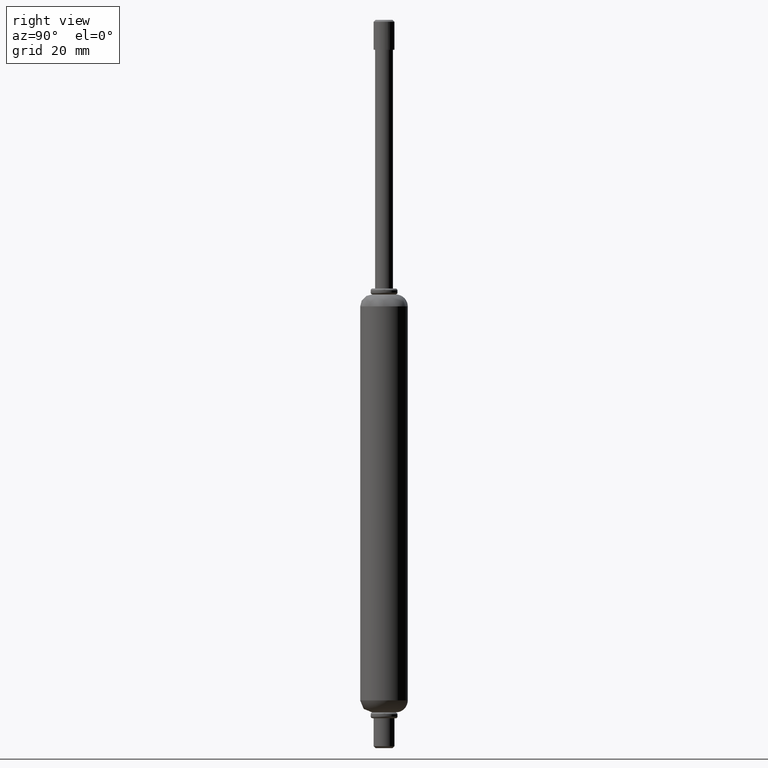
[diagram: clean part render]
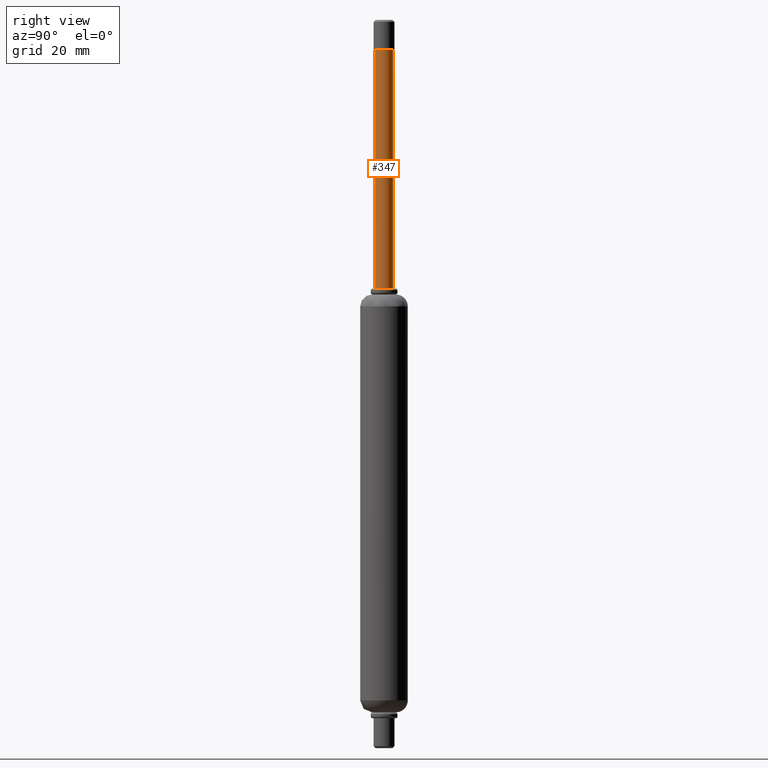
[diagram: same view with one face highlighted and labeled with its STEP entity id]
A machine part, right view. The second image highlights one B-rep face of the part: STEP entity #347.
In plain terms, the highlighted face is a freeform B-spline surface patch.
Its self-contained STEP definition (entity closure, byte-faithful):
#245=CARTESIAN_POINT('',(-0.177051351984901,1.489514289545124,42.000000000000021));
#246=CARTESIAN_POINT('',(-0.134422092956741,1.494581423172532,42.000000000000014));
#247=CARTESIAN_POINT('',(-0.091572809302070,1.497202197632423,42.000000000000007));
#248=CARTESIAN_POINT('',(1.405629388330353,1.588775006934685,42.000000000000007));
#249=CARTESIAN_POINT('',(1.497202197632615,0.091572809302262,42.000000000000007));
#250=CARTESIAN_POINT('',(1.588775006934877,-1.405629388330160,42.000000000000007));
#251=CARTESIAN_POINT('',(0.091572809302454,-1.497202197632423,42.000000000000007));
#252=CARTESIAN_POINT('',(-0.177051351984901,1.489514289545124,-0.024999999999999));
#253=CARTESIAN_POINT('',(-0.134422092956741,1.494581423172532,-0.024999999999999));
#254=CARTESIAN_POINT('',(-0.091572809302070,1.497202197632423,-0.024999999999999));
#255=CARTESIAN_POINT('',(1.405629388330353,1.588775006934685,-0.024999999999999));
#256=CARTESIAN_POINT('',(1.497202197632615,0.091572809302262,-0.024999999999999));
#257=CARTESIAN_POINT('',(1.588775006934877,-1.405629388330160,-0.024999999999999));
#258=CARTESIAN_POINT('',(0.091572809302454,-1.497202197632423,-0.024999999999999));
#266=(BOUNDED_SURFACE()B_SPLINE_SURFACE(2,1,((#245,#252),(#246,#253),(#247,#254),(#248,#255),(#249,#256),(#250,#257),(#251,#258)),.UNSPECIFIED.,.F.,.F.,.U.)B_SPLINE_SURFACE_WITH_KNOTS((3,2,2,3),(2,2),(3.078760800517997,3.141592653589793,4.712388980384690,6.283185307179586),(0.0,42.025000000000020),.UNSPECIFIED.)GEOMETRIC_REPRESENTATION_ITEM()RATIONAL_B_SPLINE_SURFACE(((0.977505800795127,0.977505800795127),(0.988284271247462,0.988284271247462),(1.0,1.0),(0.707106781186548,0.707106781186548),(1.0,1.0),(0.707106781186548,0.707106781186548),(1.0,1.0)))REPRESENTATION_ITEM('')SURFACE());
#267=CARTESIAN_POINT('',(-0.177051352329437,1.489514289504171,41.0));
#268=VERTEX_POINT('',#267);
#269=CARTESIAN_POINT('',(1.499999999999814,0.0,41.0));
#270=VERTEX_POINT('',#269);
#271=CARTESIAN_POINT('',(-0.177051352329437,1.489514289504172,40.999999999999993));
#272=CARTESIAN_POINT('',(-0.088836179825829,1.499999999999622,40.999999999999993));
#273=CARTESIAN_POINT('',(1.920686E-013,1.499999999999622,41.0));
#274=CARTESIAN_POINT('',(1.499999999999814,1.499999999999622,41.000000000000007));
#275=CARTESIAN_POINT('',(1.499999999999814,0.0,41.0));
#283=(BOUNDED_CURVE()B_SPLINE_CURVE(2,(#271,#272,#273,#274,#275),.UNSPECIFIED.,.F.,.U.)B_SPLINE_CURVE_WITH_KNOTS((3,2,3),(0.229562473437461,0.250000000000000,0.500000000000000),.UNSPECIFIED.)CURVE()GEOMETRIC_REPRESENTATION_ITEM()RATIONAL_B_SPLINE_CURVE((0.956026754034643,0.976055948242050,1.0,0.707106781186547,1.0))REPRESENTATION_ITEM(''));
#284=EDGE_CURVE('',#268,#270,#283,.T.);
#285=ORIENTED_EDGE('',*,*,#284,.T.);
#286=CARTESIAN_POINT('',(0.091573057307112,-1.497202182463767,41.0));
#287=VERTEX_POINT('',#286);
#288=CARTESIAN_POINT('',(1.499999999999814,0.0,41.0));
#289=CARTESIAN_POINT('',(1.499999999999814,-1.411058632013792,41.000000000000007));
#290=CARTESIAN_POINT('',(0.091573057307112,-1.497202182463767,41.0));
#298=(BOUNDED_CURVE()B_SPLINE_CURVE(2,(#288,#289,#290),.UNSPECIFIED.,.F.,.U.)B_SPLINE_CURVE_WITH_KNOTS((3,3),(0.500000000000000,0.739332905078806),.UNSPECIFIED.)CURVE()GEOMETRIC_REPRESENTATION_ITEM()RATIONAL_B_SPLINE_CURVE((1.0,0.719604060253976,0.976071919161695))REPRESENTATION_ITEM(''));
#299=EDGE_CURVE('',#270,#287,#298,.T.);
#300=ORIENTED_EDGE('',*,*,#299,.T.);
#301=CARTESIAN_POINT('',(0.091573057307112,-1.497202182463767,0.999999999999999));
#302=VERTEX_POINT('',#301);
#303=CARTESIAN_POINT('',(0.091573057307112,-1.497202182463767,41.0));
#304=CARTESIAN_POINT('',(0.091573057307112,-1.497202182463767,0.999999999999999));
#305=QUASI_UNIFORM_CURVE('',1,(#303,#304),.UNSPECIFIED.,.F.,.U.);
#306=EDGE_CURVE('',#287,#302,#305,.T.);
#307=ORIENTED_EDGE('',*,*,#306,.T.);
#308=CARTESIAN_POINT('',(1.499999999999814,0.0,1.0));
#309=VERTEX_POINT('',#308);
#310=CARTESIAN_POINT('',(1.499999999999814,0.0,1.0));
#311=CARTESIAN_POINT('',(1.499999999999814,-1.411058632013792,1.0));
#312=CARTESIAN_POINT('',(0.091573057307112,-1.497202182463767,0.999999999999999));
#320=(BOUNDED_CURVE()B_SPLINE_CURVE(2,(#310,#311,#312),.UNSPECIFIED.,.F.,.U.)B_SPLINE_CURVE_WITH_KNOTS((3,3),(0.500000000000000,0.739332905078806),.UNSPECIFIED.)CURVE()GEOMETRIC_REPRESENTATION_ITEM()RATIONAL_B_SPLINE_CURVE((1.0,0.719604060253976,0.976071919161695))REPRESENTATION_ITEM(''));
#321=EDGE_CURVE('',#309,#302,#320,.T.);
#322=ORIENTED_EDGE('',*,*,#321,.F.);
#323=CARTESIAN_POINT('',(-0.177051352329437,1.489514289504171,0.999999999999999));
#324=VERTEX_POINT('',#323);
#325=CARTESIAN_POINT('',(-0.177051352329437,1.489514289504171,0.999999999999999));
#326=CARTESIAN_POINT('',(-0.088836179825829,1.499999999999622,1.0));
#327=CARTESIAN_POINT('',(1.920686E-013,1.499999999999622,1.0));
#328=CARTESIAN_POINT('',(1.499999999999814,1.499999999999622,1.0));
#329=CARTESIAN_POINT('',(1.499999999999814,0.0,1.0));
#337=(BOUNDED_CURVE()B_SPLINE_CURVE(2,(#325,#326,#327,#328,#329),.UNSPECIFIED.,.F.,.U.)B_SPLINE_CURVE_WITH_KNOTS((3,2,3),(0.229562473437461,0.250000000000000,0.500000000000000),.UNSPECIFIED.)CURVE()GEOMETRIC_REPRESENTATION_ITEM()RATIONAL_B_SPLINE_CURVE((0.956026754034643,0.976055948242050,1.0,0.707106781186547,1.0))REPRESENTATION_ITEM(''));
#338=EDGE_CURVE('',#324,#309,#337,.T.);
#339=ORIENTED_EDGE('',*,*,#338,.F.);
#340=CARTESIAN_POINT('',(-0.177051352329437,1.489514289504171,41.0));
#341=CARTESIAN_POINT('',(-0.177051352329437,1.489514289504171,0.999999999999999));
#342=QUASI_UNIFORM_CURVE('',1,(#340,#341),.UNSPECIFIED.,.F.,.U.);
#343=EDGE_CURVE('',#268,#324,#342,.T.);
#344=ORIENTED_EDGE('',*,*,#343,.F.);
#345=EDGE_LOOP('',(#285,#300,#307,#322,#339,#344));
#346=FACE_OUTER_BOUND('',#345,.T.);
#347=ADVANCED_FACE('',(#346),#266,.T.);